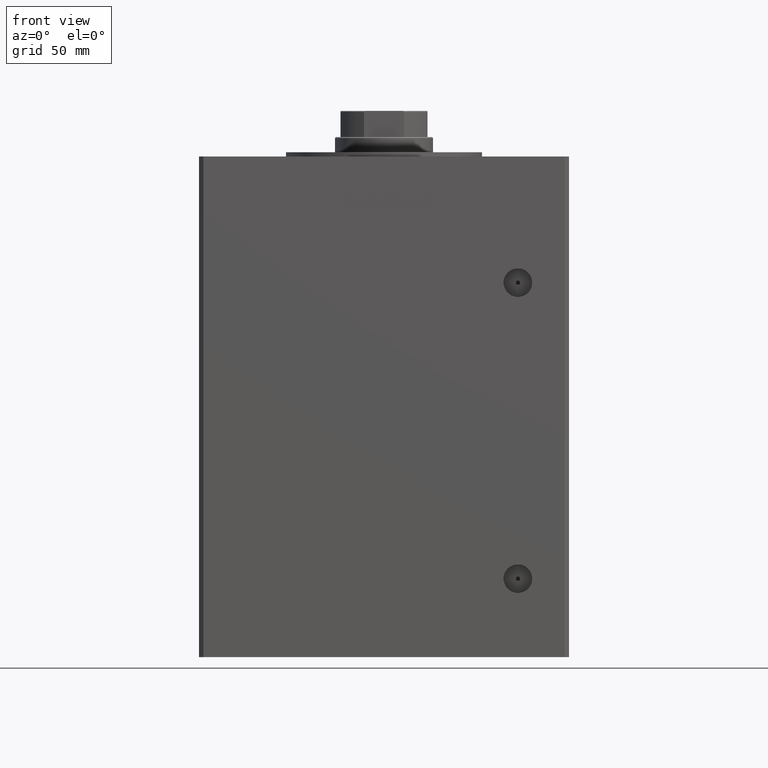
[diagram: clean part render]
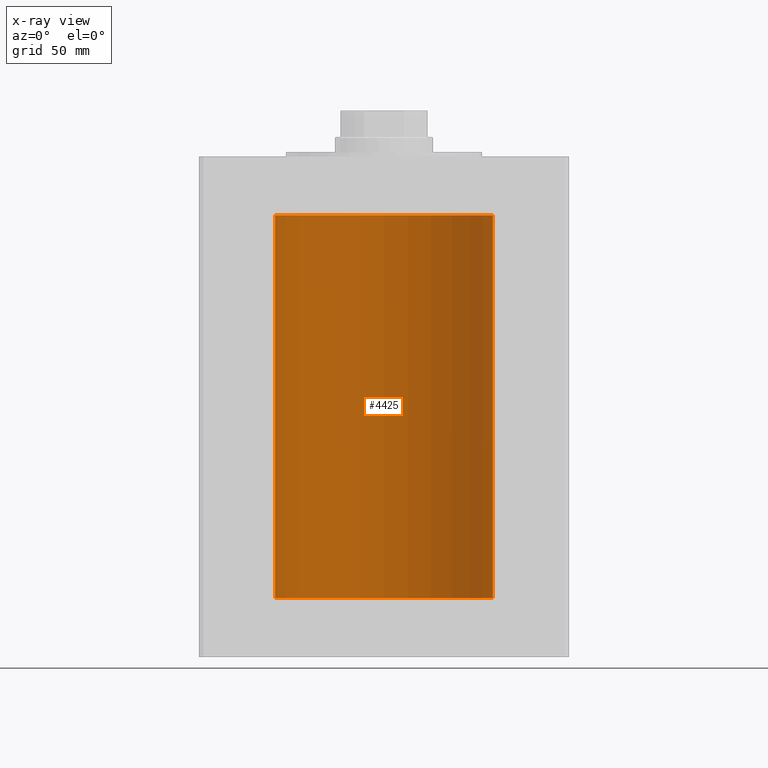
[diagram: x-ray — body ghosted, one internal face saturated and labeled with its STEP entity id]
A machine part, front view, then the same camera in x-ray: the body is ghosted and one INTERNAL B-rep face — a face not visible from any outside direction — is saturated and labeled: STEP entity #4425.
In plain terms, the highlighted cylindrical surface (partial cylindrical patch) has radius 50 mm, axis along (-0, -0, -1).
Its self-contained STEP definition (entity closure, byte-faithful):
#1970 = CIRCLE ( 'NONE', #28922, 50.00000000000000000 ) ;
#4425 = ADVANCED_FACE ( 'NONE', ( #28522 ), #40632, .F. ) ;
#4995 = DIRECTION ( 'NONE',  ( -0.000000000000000000, -0.000000000000000000, -1.000000000000000000 ) ) ;
#5932 = ORIENTED_EDGE ( 'NONE', *, *, #46546, .F. ) ;
#7599 = EDGE_CURVE ( 'NONE', #26050, #35938, #1970, .T. ) ;
#8976 = DIRECTION ( 'NONE',  ( -1.000000000000000000, 0.000000000000000000, 0.000000000000000000 ) ) ;
#12143 = VERTEX_POINT ( 'NONE', #23615 ) ;
#12635 = CARTESIAN_POINT ( 'NONE',  ( 50.00000000000000000, 6.123233995736766085E-15, 176.0000000000000000 ) ) ;
#12829 = AXIS2_PLACEMENT_3D ( 'NONE', #15340, #31442, #8976 ) ;
#12879 = DIRECTION ( 'NONE',  ( -0.000000000000000000, -0.000000000000000000, -1.000000000000000000 ) ) ;
#14835 = CARTESIAN_POINT ( 'NONE',  ( 50.00000000000000000, 6.123233995736766085E-15, 176.0000000000000000 ) ) ;
#15340 = CARTESIAN_POINT ( 'NONE',  ( 0.000000000000000000, 0.000000000000000000, 176.0000000000000000 ) ) ;
#19774 = DIRECTION ( 'NONE',  ( 1.000000000000000000, 0.000000000000000000, 0.000000000000000000 ) ) ;
#21342 = LINE ( 'NONE', #12635, #27005 ) ;
#23171 = DIRECTION ( 'NONE',  ( 1.000000000000000000, 0.000000000000000000, 0.000000000000000000 ) ) ;
#23615 = CARTESIAN_POINT ( 'NONE',  ( -50.00000000000000000, 0.000000000000000000, 176.0000000000000000 ) ) ;
#24762 = CARTESIAN_POINT ( 'NONE',  ( -50.00000000000000000, 0.000000000000000000, 176.0000000000000000 ) ) ;
#26050 = VERTEX_POINT ( 'NONE', #46770 ) ;
#27005 = VECTOR ( 'NONE', #4995, 1000.000000000000000 ) ;
#27640 = CIRCLE ( 'NONE', #51183, 50.00000000000000000 ) ;
#27705 = DIRECTION ( 'NONE',  ( -0.000000000000000000, 0.000000000000000000, 1.000000000000000000 ) ) ;
#28149 = VERTEX_POINT ( 'NONE', #14835 ) ;
#28522 = FACE_OUTER_BOUND ( 'NONE', #39860, .T. ) ;
#28732 = CARTESIAN_POINT ( 'NONE',  ( 0.000000000000000000, 0.000000000000000000, 176.0000000000000000 ) ) ;
#28922 = AXIS2_PLACEMENT_3D ( 'NONE', #34767, #39483, #23171 ) ;
#31442 = DIRECTION ( 'NONE',  ( -0.000000000000000000, -0.000000000000000000, -1.000000000000000000 ) ) ;
#32890 = EDGE_CURVE ( 'NONE', #12143, #35938, #40827, .T. ) ;
#34767 = CARTESIAN_POINT ( 'NONE',  ( 0.000000000000000000, 0.000000000000000000, 0.000000000000000000 ) ) ;
#35938 = VERTEX_POINT ( 'NONE', #49948 ) ;
#36006 = ORIENTED_EDGE ( 'NONE', *, *, #39833, .T. ) ;
#39483 = DIRECTION ( 'NONE',  ( -0.000000000000000000, 0.000000000000000000, 1.000000000000000000 ) ) ;
#39833 = EDGE_CURVE ( 'NONE', #28149, #12143, #27640, .T. ) ;
#39860 = EDGE_LOOP ( 'NONE', ( #5932, #36006, #50885, #50580 ) ) ;
#40632 = CYLINDRICAL_SURFACE ( 'NONE', #12829, 50.00000000000000000 ) ;
#40827 = LINE ( 'NONE', #24762, #50277 ) ;
#46546 = EDGE_CURVE ( 'NONE', #28149, #26050, #21342, .T. ) ;
#46770 = CARTESIAN_POINT ( 'NONE',  ( 50.00000000000000000, 6.123233995736766085E-15, 0.000000000000000000 ) ) ;
#49948 = CARTESIAN_POINT ( 'NONE',  ( -50.00000000000000000, 0.000000000000000000, 0.000000000000000000 ) ) ;
#50277 = VECTOR ( 'NONE', #12879, 1000.000000000000000 ) ;
#50580 = ORIENTED_EDGE ( 'NONE', *, *, #7599, .F. ) ;
#50885 = ORIENTED_EDGE ( 'NONE', *, *, #32890, .T. ) ;
#51183 = AXIS2_PLACEMENT_3D ( 'NONE', #28732, #27705, #19774 ) ;